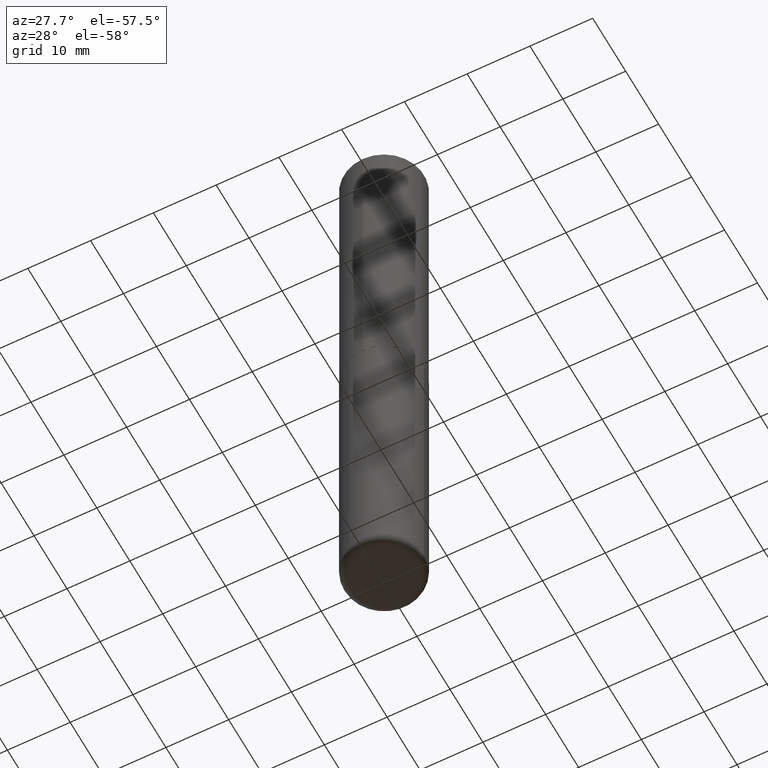
[diagram: clean part render]
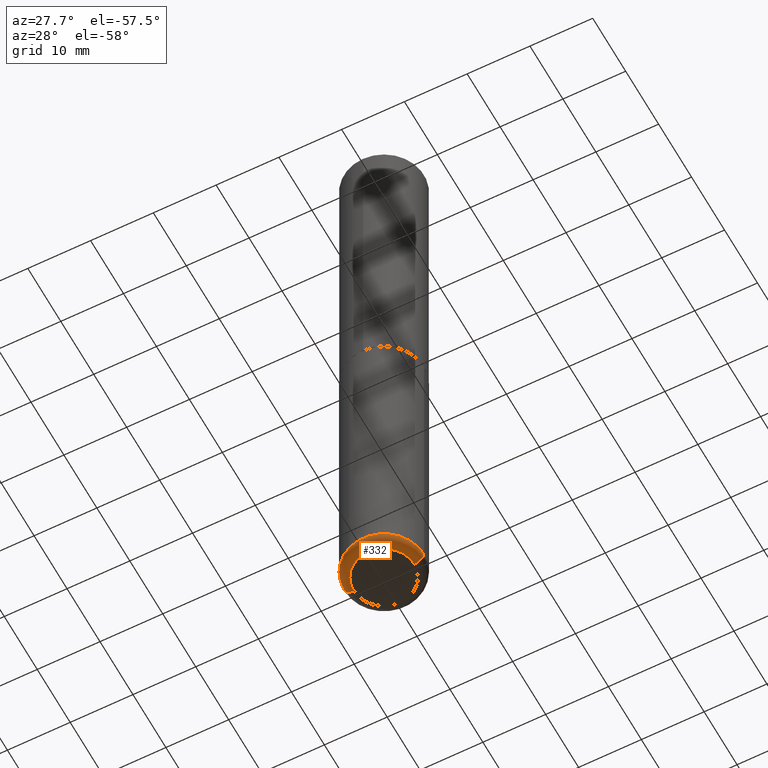
[diagram: same view with one face highlighted and labeled with its STEP entity id]
A machine part, auxiliary view. The second image highlights one B-rep face of the part: STEP entity #332.
In plain terms, the highlighted toroidal blend (fillet) surface has major radius 4.826 mm and minor (blend) radius 1.524 mm.
Its self-contained STEP definition (entity closure, byte-faithful):
#14 = EDGE_CURVE ( 'NONE', #82, #272, #94, .T. ) ;
#21 = CARTESIAN_POINT ( 'NONE',  ( 0.1899999999999999745, -1.508319938380238721E-14, -3.939999999999999947 ) ) ;
#28 = CARTESIAN_POINT ( 'NONE',  ( 0.1899999999999999745, -1.529268826413297395E-14, -4.000000000000000888 ) ) ;
#44 = EDGE_CURVE ( 'NONE', #400, #82, #57, .T. ) ;
#57 = CIRCLE ( 'NONE', #111, 0.1899999999999999745 ) ;
#77 = ORIENTED_EDGE ( 'NONE', *, *, #292, .F. ) ;
#82 = VERTEX_POINT ( 'NONE', #28 ) ;
#94 = CIRCLE ( 'NONE', #175, 0.06000000000000021289 ) ;
#97 = CARTESIAN_POINT ( 'NONE',  ( -0.2500000000000001110, -1.198007963564174355E-14, -3.939999999999999947 ) ) ;
#99 = AXIS2_PLACEMENT_3D ( 'NONE', #327, #174, #328 ) ;
#111 = AXIS2_PLACEMENT_3D ( 'NONE', #416, #122, #413 ) ;
#122 = DIRECTION ( 'NONE',  ( -2.445468806185136597E-29, 3.491481338843145583E-15, 1.000000000000000000 ) ) ;
#152 = EDGE_CURVE ( 'NONE', #400, #207, #282, .T. ) ;
#155 = DIRECTION ( 'NONE',  ( 7.105427357601001859E-15, 1.000000000000000000, -3.491481338843145583E-15 ) ) ;
#165 = CARTESIAN_POINT ( 'NONE',  ( 9.635147096369438236E-29, -1.375643647504199401E-14, -3.939999999999999947 ) ) ;
#168 = CIRCLE ( 'NONE', #257, 0.2500000000000000000 ) ;
#174 = DIRECTION ( 'NONE',  ( -2.445468806185136597E-29, 3.491481338843145583E-15, 1.000000000000000000 ) ) ;
#175 = AXIS2_PLACEMENT_3D ( 'NONE', #21, #177, #408 ) ;
#177 = DIRECTION ( 'NONE',  ( -6.982962677686266711E-15, -1.000000000000000000, 3.491481338843145583E-15 ) ) ;
#187 = EDGE_LOOP ( 'NONE', ( #303, #204, #374, #77 ) ) ;
#204 = ORIENTED_EDGE ( 'NONE', *, *, #44, .T. ) ;
#207 = VERTEX_POINT ( 'NONE', #97 ) ;
#227 = TOROIDAL_SURFACE ( 'NONE', #99, 0.1899999999999999745, 0.06000000000000023370 ) ;
#228 = DIRECTION ( 'NONE',  ( -2.445468806185136597E-29, 3.491481338843145583E-15, 1.000000000000000000 ) ) ;
#241 = CARTESIAN_POINT ( 'NONE',  ( -0.1899999999999999745, -1.229798689653506874E-14, -4.000000000000000888 ) ) ;
#257 = AXIS2_PLACEMENT_3D ( 'NONE', #165, #228, #266 ) ;
#262 = AXIS2_PLACEMENT_3D ( 'NONE', #352, #155, #350 ) ;
#266 = DIRECTION ( 'NONE',  ( 1.000000000000000000, -6.982962677686270655E-15, 0.000000000000000000 ) ) ;
#272 = VERTEX_POINT ( 'NONE', #385 ) ;
#282 = CIRCLE ( 'NONE', #262, 0.06000000000000021289 ) ;
#292 = EDGE_CURVE ( 'NONE', #207, #272, #168, .T. ) ;
#303 = ORIENTED_EDGE ( 'NONE', *, *, #152, .F. ) ;
#327 = CARTESIAN_POINT ( 'NONE',  ( 9.635147096369438236E-29, -1.375643647504199401E-14, -3.939999999999999947 ) ) ;
#328 = DIRECTION ( 'NONE',  ( 1.000000000000000000, -6.982962677686265133E-15, 4.883557194083111780E-29 ) ) ;
#331 = FACE_OUTER_BOUND ( 'NONE', #187, .T. ) ;
#332 = ADVANCED_FACE ( 'NONE', ( #331 ), #227, .T. ) ;
#350 = DIRECTION ( 'NONE',  ( -1.000000000000000000, 7.105427357600997914E-15, 0.000000000000000000 ) ) ;
#352 = CARTESIAN_POINT ( 'NONE',  ( -0.1899999999999999745, -1.240640527709780404E-14, -3.939999999999999947 ) ) ;
#374 = ORIENTED_EDGE ( 'NONE', *, *, #14, .T. ) ;
#385 = CARTESIAN_POINT ( 'NONE',  ( 0.2500000000000001110, -1.550217714446356385E-14, -3.939999999999999947 ) ) ;
#400 = VERTEX_POINT ( 'NONE', #241 ) ;
#408 = DIRECTION ( 'NONE',  ( 1.000000000000000000, -6.982962677686275388E-15, 0.000000000000000000 ) ) ;
#413 = DIRECTION ( 'NONE',  ( 1.000000000000000000, -6.982962677686261977E-15, 0.000000000000000000 ) ) ;
#416 = CARTESIAN_POINT ( 'NONE',  ( 9.781875224740547508E-29, -1.396592535537258391E-14, -4.000000000000000888 ) ) ;